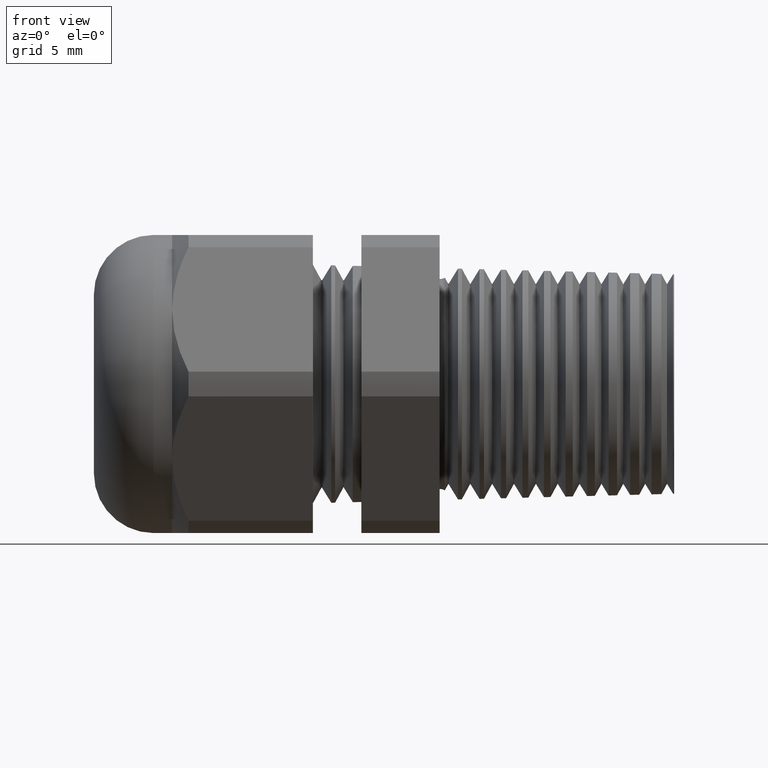
[diagram: clean part render]
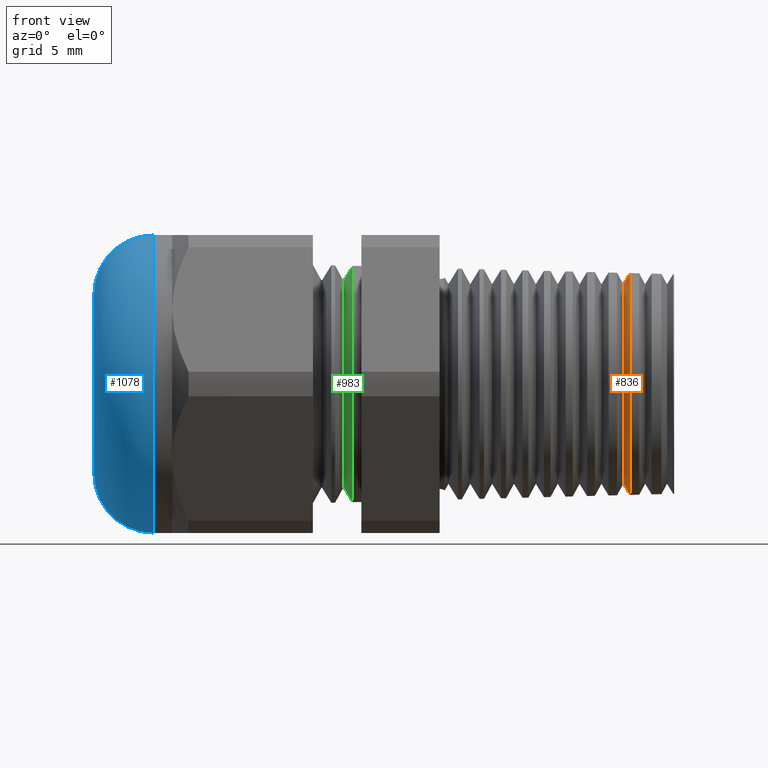
[diagram: same view with three faces highlighted in distinct colors, each labeled with its STEP entity id]
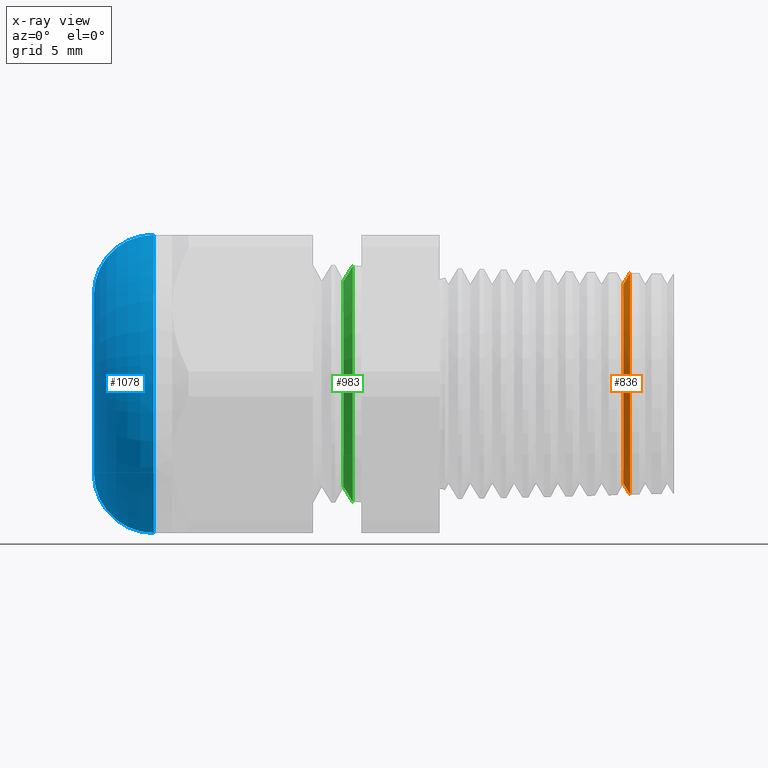
[diagram: x-ray of the same camera — body ghosted, the three highlighted faces saturated]
A machine part, front view with three faces highlighted in distinct colors.
The next image is the same camera in x-ray (body ghosted, the three faces saturated) — at least one of them is partly hidden behind the body in this view.
Their STEP definitions:

[orange] entity #836 — the highlighted conical surface has half-angle 58.5 deg.
#159 = VERTEX_POINT ( 'NONE', #1637 ) ;
#162 = EDGE_CURVE ( 'NONE', #180, #159, #1631, .T. ) ;
#180 = VERTEX_POINT ( 'NONE', #1665 ) ;
#181 = VERTEX_POINT ( 'NONE', #1664 ) ;
#183 = EDGE_CURVE ( 'NONE', #181, #184, #1663, .T. ) ;
#184 = VERTEX_POINT ( 'NONE', #1659 ) ;
#597 = EDGE_CURVE ( 'NONE', #159, #184, #2506, .T. ) ;
#833 = EDGE_CURVE ( 'NONE', #181, #180, #2858, .T. ) ;
#836 = ADVANCED_FACE ( 'NONE', ( #2921 ), #2920, .T. ) ;
#837 = EDGE_LOOP ( 'NONE', ( #838, #839, #891, #892 ) ) ;
#838 = ORIENTED_EDGE ( 'NONE', *, *, #183, .F. ) ;
#839 = ORIENTED_EDGE ( 'NONE', *, *, #833, .T. ) ;
#891 = ORIENTED_EDGE ( 'NONE', *, *, #162, .T. ) ;
#892 = ORIENTED_EDGE ( 'NONE', *, *, #597, .T. ) ;
#1628 = DIRECTION ( 'NONE',  ( 0.5224985647159464700, 0.0000000000000000000, -0.8526401643540936200 ) ) ;
#1629 = VECTOR ( 'NONE', #1628, 39.37007874015748100 ) ;
#1630 = CARTESIAN_POINT ( 'NONE',  ( 0.1520390190945656900, 0.0000000000000000000, -0.2510606096265777800 ) ) ;
#1631 = LINE ( 'NONE', #1630, #1629 ) ;
#1637 = CARTESIAN_POINT ( 'NONE',  ( 0.1692231324462329700, 3.418020248863739100E-017, -0.2791025339913106300 ) ) ;
#1659 = CARTESIAN_POINT ( 'NONE',  ( 0.1692231324462329700, 0.0000000000000000000, 0.2791025339913106300 ) ) ;
#1660 = DIRECTION ( 'NONE',  ( 0.5224985647159464700, 1.044183048100714000E-016, 0.8526401643540936200 ) ) ;
#1661 = VECTOR ( 'NONE', #1660, 39.37007874015748100 ) ;
#1662 = CARTESIAN_POINT ( 'NONE',  ( 0.1520390190945656900, 3.074605719711716500E-017, 0.2510606096265777800 ) ) ;
#1663 = LINE ( 'NONE', #1662, #1661 ) ;
#1664 = CARTESIAN_POINT ( 'NONE',  ( 0.1520390190945656900, 0.0000000000000000000, 0.2510606096265777800 ) ) ;
#1665 = CARTESIAN_POINT ( 'NONE',  ( 0.1520390190945656900, 3.251584577600829500E-017, -0.2510606096265777800 ) ) ;
#2502 = DIRECTION ( 'NONE',  ( 0.0000000000000000000, 0.0000000000000000000, -1.000000000000000000 ) ) ;
#2503 = DIRECTION ( 'NONE',  ( -1.000000000000000000, 0.0000000000000000000, 0.0000000000000000000 ) ) ;
#2504 = CARTESIAN_POINT ( 'NONE',  ( 0.1692231324462329700, 0.0000000000000000000, 0.0000000000000000000 ) ) ;
#2505 = AXIS2_PLACEMENT_3D ( 'NONE', #2504, #2503, #2502 ) ;
#2506 = CIRCLE ( 'NONE', #2505, 0.2791025339913106300 ) ;
#2858 = CIRCLE ( 'NONE', #2924, 0.2510606096265777800 ) ;
#2862 = CARTESIAN_POINT ( 'NONE',  ( 0.1520390190945656900, 0.0000000000000000000, 0.0000000000000000000 ) ) ;
#2915 = DIRECTION ( 'NONE',  ( 0.0000000000000000000, 0.0000000000000000000, -1.000000000000000000 ) ) ;
#2916 = DIRECTION ( 'NONE',  ( 1.000000000000000000, 0.0000000000000000000, 0.0000000000000000000 ) ) ;
#2917 = CARTESIAN_POINT ( 'NONE',  ( 0.1520390190945656900, 0.0000000000000000000, 0.0000000000000000000 ) ) ;
#2918 = AXIS2_PLACEMENT_3D ( 'NONE', #2917, #2916, #2915 ) ;
#2920 = CONICAL_SURFACE ( 'NONE', #2918, 0.2510606096265777800, 1.021017612416685600 ) ;
#2921 = FACE_OUTER_BOUND ( 'NONE', #837, .T. ) ;
#2922 = DIRECTION ( 'NONE',  ( 0.0000000000000000000, 0.0000000000000000000, -1.000000000000000000 ) ) ;
#2923 = DIRECTION ( 'NONE',  ( 1.000000000000000000, 0.0000000000000000000, 0.0000000000000000000 ) ) ;
#2924 = AXIS2_PLACEMENT_3D ( 'NONE', #2862, #2923, #2922 ) ;

[blue] entity #1078 — the highlighted toroidal blend (fillet) surface has major radius 5.715 mm and minor (blend) radius 3.81 mm.
#247 = EDGE_CURVE ( 'NONE', #1214, #1296, #1784, .T. ) ;
#681 = EDGE_CURVE ( 'NONE', #1292, #1291, #2634, .T. ) ;
#1078 = ADVANCED_FACE ( 'NONE', ( #3224 ), #3223, .T. ) ;
#1079 = EDGE_LOOP ( 'NONE', ( #1080, #1081, #1082, #1083 ) ) ;
#1080 = ORIENTED_EDGE ( 'NONE', *, *, #1232, .F. ) ;
#1081 = ORIENTED_EDGE ( 'NONE', *, *, #681, .F. ) ;
#1082 = ORIENTED_EDGE ( 'NONE', *, *, #1294, .T. ) ;
#1083 = ORIENTED_EDGE ( 'NONE', *, *, #247, .T. ) ;
#1214 = VERTEX_POINT ( 'NONE', #3467 ) ;
#1232 = EDGE_CURVE ( 'NONE', #1291, #1296, #3493, .T. ) ;
#1291 = VERTEX_POINT ( 'NONE', #3620 ) ;
#1292 = VERTEX_POINT ( 'NONE', #3619 ) ;
#1294 = EDGE_CURVE ( 'NONE', #1292, #1214, #3618, .T. ) ;
#1296 = VERTEX_POINT ( 'NONE', #3613 ) ;
#1780 = DIRECTION ( 'NONE',  ( 0.0000000000000000000, 0.0000000000000000000, -1.000000000000000000 ) ) ;
#1781 = DIRECTION ( 'NONE',  ( 1.000000000000000000, 0.0000000000000000000, 0.0000000000000000000 ) ) ;
#1782 = CARTESIAN_POINT ( 'NONE',  ( -1.179999999999999700, 0.0000000000000000000, 0.0000000000000000000 ) ) ;
#1783 = AXIS2_PLACEMENT_3D ( 'NONE', #1782, #1781, #1780 ) ;
#1784 = CIRCLE ( 'NONE', #1783, 0.2249999999999999200 ) ;
#2631 = DIRECTION ( 'NONE',  ( 0.0000000000000000000, 0.0000000000000000000, 1.000000000000000000 ) ) ;
#2632 = DIRECTION ( 'NONE',  ( 1.000000000000000000, 0.0000000000000000000, 0.0000000000000000000 ) ) ;
#2633 = AXIS2_PLACEMENT_3D ( 'NONE', #2640, #2632, #2631 ) ;
#2634 = CIRCLE ( 'NONE', #2633, 0.3750000000000002200 ) ;
#2640 = CARTESIAN_POINT ( 'NONE',  ( -1.029999999999999600, 0.0000000000000000000, 0.0000000000000000000 ) ) ;
#3220 = DIRECTION ( 'NONE',  ( 0.0000000000000000000, 0.0000000000000000000, 1.000000000000000000 ) ) ;
#3221 = DIRECTION ( 'NONE',  ( -1.000000000000000000, 0.0000000000000000000, 0.0000000000000000000 ) ) ;
#3222 = AXIS2_PLACEMENT_3D ( 'NONE', #3228, #3221, #3220 ) ;
#3223 = TOROIDAL_SURFACE ( 'NONE', #3222, 0.2250000000000002600, 0.1499999999999999900 ) ;
#3224 = FACE_OUTER_BOUND ( 'NONE', #1079, .T. ) ;
#3228 = CARTESIAN_POINT ( 'NONE',  ( -1.029999999999999600, 0.0000000000000000000, 0.0000000000000000000 ) ) ;
#3467 = CARTESIAN_POINT ( 'NONE',  ( -1.179999999999999700, 2.755455298081544200E-017, 0.2249999999999999200 ) ) ;
#3490 = DIRECTION ( 'NONE',  ( 0.0000000000000000000, -1.224646799147353000E-016, 1.000000000000000000 ) ) ;
#3491 = DIRECTION ( 'NONE',  ( 0.0000000000000000000, 1.000000000000000000, 1.224646799147353200E-016 ) ) ;
#3492 = AXIS2_PLACEMENT_3D ( 'NONE', #3497, #3491, #3490 ) ;
#3493 = CIRCLE ( 'NONE', #3492, 0.1499999999999999900 ) ;
#3497 = CARTESIAN_POINT ( 'NONE',  ( -1.029999999999999600, 2.755455298081548200E-017, -0.2250000000000002600 ) ) ;
#3613 = CARTESIAN_POINT ( 'NONE',  ( -1.179999999999999700, 0.0000000000000000000, -0.2249999999999999200 ) ) ;
#3614 = DIRECTION ( 'NONE',  ( 0.0000000000000000000, 0.0000000000000000000, -1.000000000000000000 ) ) ;
#3615 = DIRECTION ( 'NONE',  ( 0.0000000000000000000, -1.000000000000000000, 0.0000000000000000000 ) ) ;
#3616 = CARTESIAN_POINT ( 'NONE',  ( -1.029999999999999600, 0.0000000000000000000, 0.2250000000000002600 ) ) ;
#3617 = AXIS2_PLACEMENT_3D ( 'NONE', #3616, #3615, #3614 ) ;
#3618 = CIRCLE ( 'NONE', #3617, 0.1499999999999999900 ) ;
#3619 = CARTESIAN_POINT ( 'NONE',  ( -1.029999999999999600, 4.592425496802577300E-017, 0.3750000000000002200 ) ) ;
#3620 = CARTESIAN_POINT ( 'NONE',  ( -1.029999999999999600, 0.0000000000000000000, -0.3750000000000002200 ) ) ;

[green] entity #983 — the highlighted conical surface has half-angle 58.5 deg.
#901 = EDGE_LOOP ( 'NONE', ( #902, #903, #904, #905 ) ) ;
#902 = ORIENTED_EDGE ( 'NONE', *, *, #1252, .F. ) ;
#903 = ORIENTED_EDGE ( 'NONE', *, *, #980, .T. ) ;
#904 = ORIENTED_EDGE ( 'NONE', *, *, #1318, .T. ) ;
#905 = ORIENTED_EDGE ( 'NONE', *, *, #906, .T. ) ;
#906 = EDGE_CURVE ( 'NONE', #1224, #1227, #2966, .T. ) ;
#980 = EDGE_CURVE ( 'NONE', #1319, #1262, #3106, .T. ) ;
#983 = ADVANCED_FACE ( 'NONE', ( #3101 ), #3100, .T. ) ;
#1224 = VERTEX_POINT ( 'NONE', #3448 ) ;
#1227 = VERTEX_POINT ( 'NONE', #3442 ) ;
#1252 = EDGE_CURVE ( 'NONE', #1319, #1227, #3505, .T. ) ;
#1262 = VERTEX_POINT ( 'NONE', #3554 ) ;
#1318 = EDGE_CURVE ( 'NONE', #1262, #1224, #3652, .T. ) ;
#1319 = VERTEX_POINT ( 'NONE', #3648 ) ;
#2958 = DIRECTION ( 'NONE',  ( 0.0000000000000000000, 0.0000000000000000000, -1.000000000000000000 ) ) ;
#2959 = DIRECTION ( 'NONE',  ( -1.000000000000000000, 0.0000000000000000000, 0.0000000000000000000 ) ) ;
#2960 = CARTESIAN_POINT ( 'NONE',  ( -0.5285153362849733800, 0.0000000000000000000, 0.0000000000000000000 ) ) ;
#2961 = AXIS2_PLACEMENT_3D ( 'NONE', #2960, #2959, #2958 ) ;
#2966 = CIRCLE ( 'NONE', #2961, 0.2973734588093054900 ) ;
#3095 = DIRECTION ( 'NONE',  ( 0.0000000000000000000, 0.0000000000000000000, -1.000000000000000000 ) ) ;
#3096 = DIRECTION ( 'NONE',  ( 1.000000000000000000, 0.0000000000000000000, 0.0000000000000000000 ) ) ;
#3097 = CARTESIAN_POINT ( 'NONE',  ( -0.5517798785432286300, 0.0000000000000000000, 0.0000000000000000000 ) ) ;
#3098 = AXIS2_PLACEMENT_3D ( 'NONE', #3097, #3096, #3095 ) ;
#3100 = CONICAL_SURFACE ( 'NONE', #3098, 0.2594091762748931300, 1.021017612416694300 ) ;
#3101 = FACE_OUTER_BOUND ( 'NONE', #901, .T. ) ;
#3102 = DIRECTION ( 'NONE',  ( 0.0000000000000000000, 0.0000000000000000000, -1.000000000000000000 ) ) ;
#3103 = DIRECTION ( 'NONE',  ( 1.000000000000000000, 0.0000000000000000000, 0.0000000000000000000 ) ) ;
#3104 = CARTESIAN_POINT ( 'NONE',  ( -0.5517798785432286300, 0.0000000000000000000, 0.0000000000000000000 ) ) ;
#3105 = AXIS2_PLACEMENT_3D ( 'NONE', #3104, #3103, #3102 ) ;
#3106 = CIRCLE ( 'NONE', #3105, 0.2594091762748931300 ) ;
#3442 = CARTESIAN_POINT ( 'NONE',  ( -0.5285153362849733800, 3.641774544821950200E-017, 0.2973734588093069300 ) ) ;
#3448 = CARTESIAN_POINT ( 'NONE',  ( -0.5285153362849733800, 0.0000000000000000000, -0.2973734588093069300 ) ) ;
#3502 = DIRECTION ( 'NONE',  ( 0.5224985647159390300, 1.044183048100719400E-016, 0.8526401643540981700 ) ) ;
#3503 = VECTOR ( 'NONE', #3502, 39.37007874015748900 ) ;
#3504 = CARTESIAN_POINT ( 'NONE',  ( -0.5517798785432286300, 3.176846173944994100E-017, 0.2594091762748931300 ) ) ;
#3505 = LINE ( 'NONE', #3504, #3503 ) ;
#3554 = CARTESIAN_POINT ( 'NONE',  ( -0.5517798785432286300, 3.416447253961099200E-017, -0.2594091762748931300 ) ) ;
#3648 = CARTESIAN_POINT ( 'NONE',  ( -0.5517798785432286300, 0.0000000000000000000, 0.2594091762748931300 ) ) ;
#3649 = DIRECTION ( 'NONE',  ( 0.5224985647159390300, 0.0000000000000000000, -0.8526401643540981700 ) ) ;
#3650 = VECTOR ( 'NONE', #3649, 39.37007874015748900 ) ;
#3651 = CARTESIAN_POINT ( 'NONE',  ( -0.5517798785432286300, 0.0000000000000000000, -0.2594091762748931300 ) ) ;
#3652 = LINE ( 'NONE', #3651, #3650 ) ;